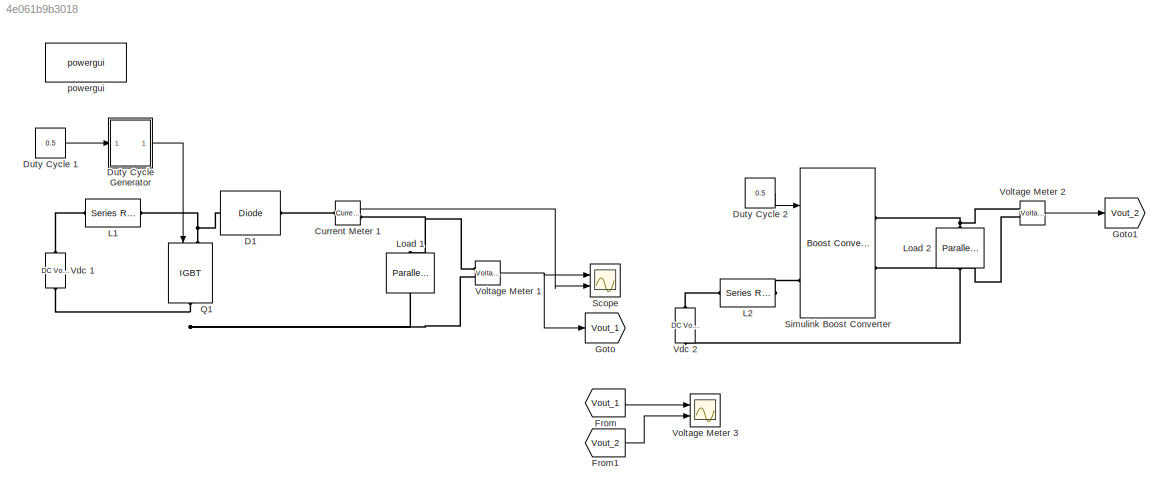
MODEL slx_4e061b9b3018
KIND model
CONFIG AbsTol = auto
CONFIG EnableMultiTasking = off
CONFIG FixedStep = auto
CONFIG MaxStep = auto
CONFIG MinStep = auto
CONFIG RelTol = 1e-3
CONFIG SampleTimeConstraint = Unconstrained
CONFIG Solver = VariableStepAuto
CONFIG SolverName = VariableStepAuto
CONFIG StartTime = 0.0
CONFIG StopTime = 1
BLOCK [Reference] Current Meter 1  REF=powerlib/Measurements/Current Measurement
  Ports = [0, 1, 0, 0, 0, 1, 1]
  SourceBlock = powerlib/Measurements/Current Measurement
  SourceProductBaseCode = PS
  SourceType = Current Measurement
  UserDataPersistent = on
BLOCK [Reference] D1  REF=powerlib/Power
Electronics/Diode
  Ports = [0, 0, 0, 0, 0, 1, 1]
  SourceBlock = powerlib/Power\nElectronics/Diode
  SourceProductBaseCode = PS
  SourceType = Diode
BLOCK [Constant] Duty Cycle 1
  Value = 0.5
BLOCK [Constant] Duty Cycle 2
  Value = 0.5
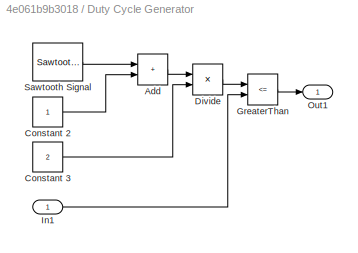
BLOCK [SubSystem] Duty Cycle Generator
  Ports = [1, 1]
  RequestExecContextInheritance = off
BLOCK [Sum] Duty Cycle Generator/Add
  IconShape = rectangular
  Ports = [2, 1]
BLOCK [Constant] Duty Cycle Generator/Constant 2
BLOCK [Constant] Duty Cycle Generator/Constant 3
  Value = 2
BLOCK [Product] Duty Cycle Generator/Divide
  Inputs = */
  Ports = [2, 1]
BLOCK [RelationalOperator] Duty Cycle Generator/GreaterThan
  InputSameDT = off
  Operator = <=
  OutDataTypeStr = boolean
  Ports = [2, 1]
  RndMeth = Simplest
BLOCK [Inport] Duty Cycle Generator/In1
BLOCK [Outport] Duty Cycle Generator/Out1
BLOCK [Reference] Duty Cycle Generator/Sawtooth Signal  REF=powerlib_meascontrol/Pulse & Signal
Generators/Sawtooth
Generator
  Ports = [0, 1]
  SourceBlock = powerlib_meascontrol/Pulse & Signal\nGenerators/Sawtooth\nGenerator
  SourceProductBaseCode = PS
  SourceType = Sawtooth Generator
BLOCK [From] From
  GotoTag = Vout_1
BLOCK [From] From1
  GotoTag = Vout_2
BLOCK [Goto] Goto
  GotoTag = Vout_1
BLOCK [Goto] Goto1
  GotoTag = Vout_2
BLOCK [Reference] L1  REF=powerlib/Elements/Series RLC Branch
  Ports = [0, 0, 0, 0, 0, 1, 1]
  SourceBlock = powerlib/Elements/Series RLC Branch
  SourceProductBaseCode = PS
  SourceType = Series RLC Branch
BLOCK [Reference] L2  REF=powerlib/Elements/Series RLC Branch
  Ports = [0, 0, 0, 0, 0, 1, 1]
  SourceBlock = powerlib/Elements/Series RLC Branch
  SourceProductBaseCode = PS
  SourceType = Series RLC Branch
BLOCK [Reference] Load 1  REF=powerlib/Elements/Parallel RLC Branch
  AttributesFormatString = \n
  NameLocation = left
  Ports = [0, 0, 0, 0, 0, 1, 1]
  SourceBlock = powerlib/Elements/Parallel RLC Branch
  SourceProductBaseCode = PS
  SourceType = Parallel RLC Branch
BLOCK [Reference] Load 2  REF=powerlib/Elements/Parallel RLC Branch
  AttributesFormatString = \n
  NameLocation = left
  Ports = [0, 0, 0, 0, 0, 1, 1]
  SourceBlock = powerlib/Elements/Parallel RLC Branch
  SourceProductBaseCode = PS
  SourceType = Parallel RLC Branch
BLOCK [Reference] Q1  REF=powerlib/Power
Electronics/IGBT
  NameLocation = right
  Ports = [1, 0, 0, 0, 0, 1, 1]
  SourceBlock = powerlib/Power\nElectronics/IGBT
  SourceProductBaseCode = PS
  SourceType = IGBT
BLOCK [Scope] Scope
  Floating = off
  NumInputPorts = 2
  Ports = [2]
  ScopeSpecificationString = Simulink.scopes.TimeScopeBlockCfg('CurrentConfiguration', extmgr.ConfigurationSet(extmgr.Configuration('Core','General UI',true),extmgr.Configuration('Core','Source UI',true),extmgr.Configuration('Sources','WiredSimulink',true),extmgr.Configuration('Visuals','Time Domain',true,'SerializedDisplays',{struct('MinYLimReal','20.17621','MaxYLimReal','20.18996','YLabelReal','','MinYLimMag','20.17621','Ma...<+2078ch>
BLOCK [Reference] Simulink Boost Converter  REF=powerlib/Power
Electronics/Boost Converter
  Ports = [2, 0, 0, 0, 0, 1, 2]
  SourceBlock = powerlib/Power\nElectronics/Boost Converter
  SourceProductBaseCode = PS
  SourceType = Boost Converter
BLOCK [Reference] Vdc 1   REF=powerlib/Electrical
Sources/DC Voltage Source
  NameLocation = right
  Ports = [0, 0, 0, 0, 0, 1, 1]
  SourceBlock = powerlib/Electrical\nSources/DC Voltage Source
  SourceProductBaseCode = PS
  SourceType = DC Voltage Source
BLOCK [Reference] Vdc 2  REF=powerlib/Electrical
Sources/DC Voltage Source
  NameLocation = right
  Ports = [0, 0, 0, 0, 0, 1, 1]
  SourceBlock = powerlib/Electrical\nSources/DC Voltage Source
  SourceProductBaseCode = PS
  SourceType = DC Voltage Source
BLOCK [Reference] Voltage Meter 1  REF=powerlib/Measurements/Voltage Measurement
  Ports = [0, 1, 0, 0, 0, 2]
  SourceBlock = powerlib/Measurements/Voltage Measurement
  SourceProductBaseCode = PS
  SourceType = Voltage Measurement
  UserDataPersistent = on
BLOCK [Reference] Voltage Meter 2  REF=powerlib/Measurements/Voltage Measurement
  Ports = [0, 1, 0, 0, 0, 2]
  SourceBlock = powerlib/Measurements/Voltage Measurement
  SourceProductBaseCode = PS
  SourceType = Voltage Measurement
  UserDataPersistent = on
BLOCK [Scope] Voltage Meter 3
  Floating = off
  NumInputPorts = 2
  Ports = [2]
  ScopeSpecificationString = Simulink.scopes.TimeScopeBlockCfg('CurrentConfiguration', extmgr.ConfigurationSet(extmgr.Configuration('Core','General UI',true),extmgr.Configuration('Core','Source UI',true),extmgr.Configuration('Sources','WiredSimulink',true,'DataLoggingVariableName','ScopeData1'),extmgr.Configuration('Visuals','Time Domain',true,'SerializedDisplays',{struct('MinYLimReal','-4.41223','MaxYLimReal','39.71008','YLa...<+2141ch>
BLOCK [Reference] powergui  REF=powerlib/powergui
  Ports = []
  Priority = 1
  SourceBlock = powerlib/powergui
  SourceProductBaseCode = PS
  SourceType = PSB option menu block
LINE Current Meter 1:1 -> Scope:2
LINE Duty Cycle 1:1 -> Duty Cycle Generator:1
LINE Duty Cycle 2:1 -> Simulink Boost Converter:1
LINE Duty Cycle Generator/Add:1 -> Duty Cycle Generator/Divide:1
LINE Duty Cycle Generator/Constant 2:1 -> Duty Cycle Generator/Add:2
LINE Duty Cycle Generator/Constant 3:1 -> Duty Cycle Generator/Divide:2
LINE Duty Cycle Generator/Divide:1 -> Duty Cycle Generator/GreaterThan:1
LINE Duty Cycle Generator/GreaterThan:1 -> Duty Cycle Generator/Out1:1
LINE Duty Cycle Generator/In1:1 -> Duty Cycle Generator/GreaterThan:2
LINE Duty Cycle Generator/Sawtooth Signal:1 -> Duty Cycle Generator/Add:1
LINE Duty Cycle Generator:1 -> Q1:1
LINE From1:1 -> Voltage Meter 3:2
LINE From:1 -> Voltage Meter 3:1
NET Voltage Meter 1:1 -> Goto:1, Scope:1
LINE Voltage Meter 2:1 -> Goto1:1
PLINE Current Meter 1:LConn1 -- D1:RConn1
PNET net1: Current Meter 1:RConn1 -- Load 1:LConn1 -- Voltage Meter 1:LConn1
PNET net2: D1:LConn1 -- L1:RConn1 -- Q1:LConn1
PLINE L1:LConn1 -- Vdc 1 :RConn1
PLINE L2:LConn1 -- Vdc 2:RConn1
PLINE L2:RConn1 -- Simulink Boost Converter:LConn1
PNET net3: Load 1:RConn1 -- Q1:RConn1 -- Vdc 1 :LConn1 -- Voltage Meter 1:LConn2
PNET net4: Load 2:LConn1 -- Simulink Boost Converter:RConn1 -- Voltage Meter 2:LConn1
PNET net5: Load 2:RConn1 -- Simulink Boost Converter:RConn2 -- Vdc 2:LConn1 -- Voltage Meter 2:LConn2
note: NET lines group one-source signal fan-out (src -> all destinations, sorted); 1:1 wires keep LINE; PNET lines group multi-terminal physical nets as a canonical sorted terminal list (undirected conserving connections); 2-terminal nets keep the pairwise PLINE form
